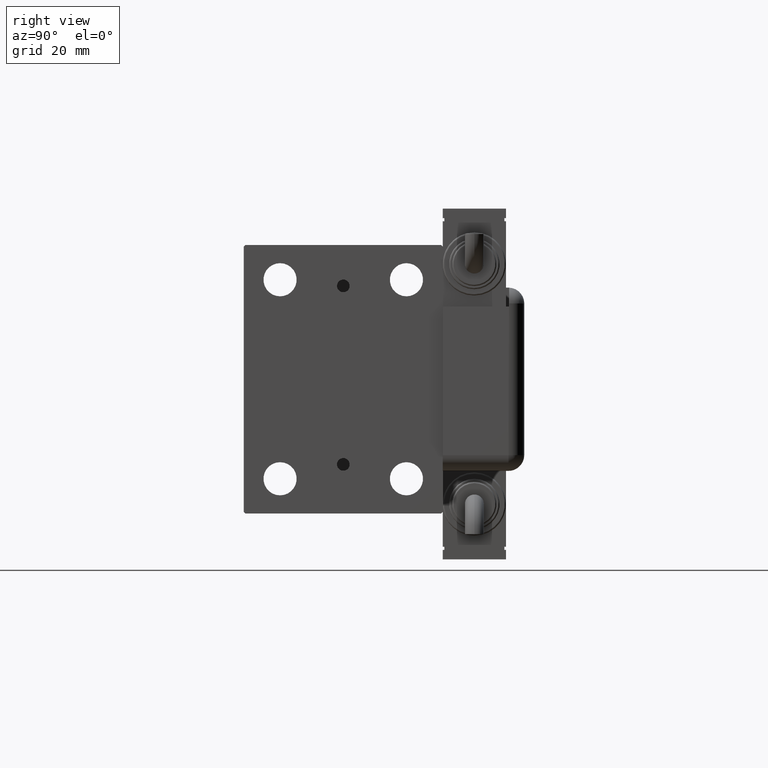
[diagram: clean part render]
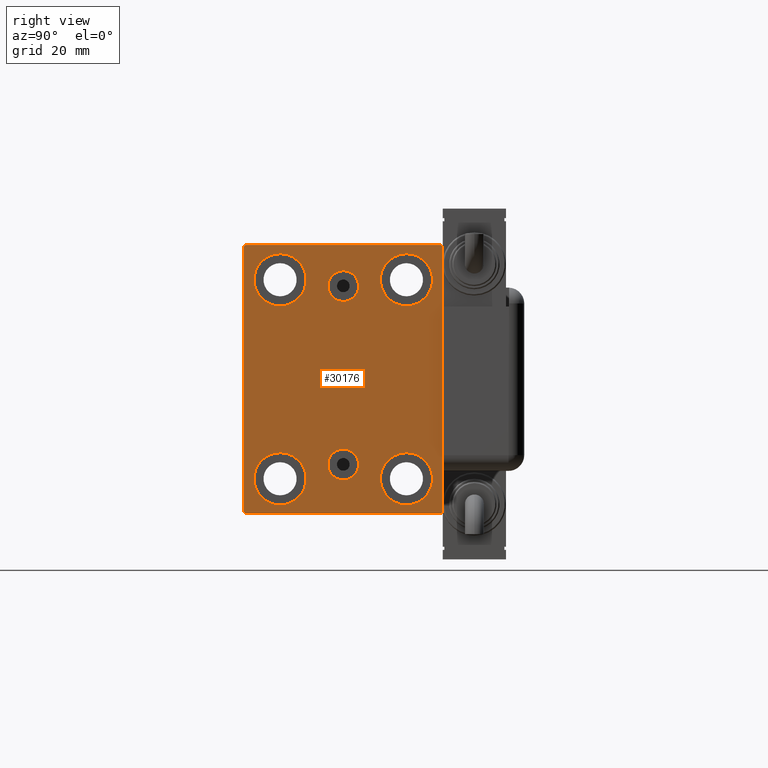
[diagram: same view with one face highlighted and labeled with its STEP entity id]
A machine part, right view. The second image highlights one B-rep face of the part: STEP entity #30176.
In plain terms, the highlighted planar face has unit normal (1, 0, 0).
Its self-contained STEP definition (entity closure, byte-faithful):
#319 = ORIENTED_EDGE ( 'NONE', *, *, #40085, .T. ) ;
#573 = CARTESIAN_POINT ( 'NONE',  ( 123.0000000000000000, -31.50000000000000000, 42.49999999999999289 ) ) ;
#655 = FACE_OUTER_BOUND ( 'NONE', #31200, .T. ) ;
#1117 = ORIENTED_EDGE ( 'NONE', *, *, #25153, .T. ) ;
#1187 = VERTEX_POINT ( 'NONE', #35546 ) ;
#1387 = VERTEX_POINT ( 'NONE', #48517 ) ;
#1448 = CIRCLE ( 'NONE', #40196, 4.859999999999995879 ) ;
#1711 = AXIS2_PLACEMENT_3D ( 'NONE', #7934, #17031, #43720 ) ;
#1806 = EDGE_LOOP ( 'NONE', ( #4683, #33412 ) ) ;
#1869 = DIRECTION ( 'NONE',  ( 0.000000000000000000, -1.000000000000000000, -2.202823461557850341E-16 ) ) ;
#1953 = CIRCLE ( 'NONE', #4851, 8.249999999999992895 ) ;
#2046 = VECTOR ( 'NONE', #41852, 1000.000000000000000 ) ;
#2326 = CIRCLE ( 'NONE', #24604, 4.859999999999999432 ) ;
#2895 = CARTESIAN_POINT ( 'NONE',  ( 123.0000000000000000, -20.00000000000000355, -23.24999999999999289 ) ) ;
#3154 = CARTESIAN_POINT ( 'NONE',  ( 123.0000000000000000, 3.306546357697852550E-15, -26.99999999999998934 ) ) ;
#3538 = DIRECTION ( 'NONE',  ( 0.000000000000000000, 0.000000000000000000, -1.000000000000000000 ) ) ;
#3613 = VECTOR ( 'NONE', #18113, 1000.000000000000114 ) ;
#3758 = EDGE_CURVE ( 'NONE', #26651, #47983, #48899, .T. ) ;
#3779 = EDGE_CURVE ( 'NONE', #54001, #7588, #1448, .T. ) ;
#3856 = AXIS2_PLACEMENT_3D ( 'NONE', #51069, #4967, #37413 ) ;
#4155 = VERTEX_POINT ( 'NONE', #35503 ) ;
#4438 = ORIENTED_EDGE ( 'NONE', *, *, #44698, .T. ) ;
#4590 = FACE_BOUND ( 'NONE', #36953, .T. ) ;
#4683 = ORIENTED_EDGE ( 'NONE', *, *, #51273, .F. ) ;
#4813 = DIRECTION ( 'NONE',  ( 0.000000000000000000, 0.000000000000000000, -1.000000000000000000 ) ) ;
#4851 = AXIS2_PLACEMENT_3D ( 'NONE', #20624, #57041, #52497 ) ;
#4967 = DIRECTION ( 'NONE',  ( 1.000000000000000000, 0.000000000000000000, 0.000000000000000000 ) ) ;
#4990 = CARTESIAN_POINT ( 'NONE',  ( 123.0000000000000000, 20.00000000000000355, 31.50000000000000000 ) ) ;
#5197 = CARTESIAN_POINT ( 'NONE',  ( 123.0000000000000000, 0.000000000000000000, 0.000000000000000000 ) ) ;
#5269 = CIRCLE ( 'NONE', #50809, 8.250000000000000000 ) ;
#5886 = AXIS2_PLACEMENT_3D ( 'NONE', #5197, #56462, #20026 ) ;
#5912 = ORIENTED_EDGE ( 'NONE', *, *, #43317, .F. ) ;
#6401 = CARTESIAN_POINT ( 'NONE',  ( 123.0000000000000000, -20.00000000000000355, -31.49999999999999289 ) ) ;
#6558 = VECTOR ( 'NONE', #14592, 1000.000000000000114 ) ;
#6769 = DIRECTION ( 'NONE',  ( -0.000000000000000000, 0.7071067811865376918, 0.7071067811865573427 ) ) ;
#7588 = VERTEX_POINT ( 'NONE', #14503 ) ;
#7708 = DIRECTION ( 'NONE',  ( 0.000000000000000000, 0.000000000000000000, 1.000000000000000000 ) ) ;
#7741 = ORIENTED_EDGE ( 'NONE', *, *, #27687, .T. ) ;
#7934 = CARTESIAN_POINT ( 'NONE',  ( 123.0000000000000000, 19.99999999999999645, -31.49999999999999289 ) ) ;
#8004 = CARTESIAN_POINT ( 'NONE',  ( 123.0000000000000000, 31.50000000000001421, -42.50000000000000711 ) ) ;
#8468 = CIRCLE ( 'NONE', #1711, 8.250000000000000000 ) ;
#9217 = CARTESIAN_POINT ( 'NONE',  ( 123.0000000000000000, -31.50000000000000000, -42.00000000000003553 ) ) ;
#10360 = FACE_BOUND ( 'NONE', #13549, .T. ) ;
#10794 = AXIS2_PLACEMENT_3D ( 'NONE', #20158, #15936, #15041 ) ;
#11382 = EDGE_CURVE ( 'NONE', #52920, #57499, #20282, .T. ) ;
#11829 = VERTEX_POINT ( 'NONE', #29246 ) ;
#11981 = EDGE_LOOP ( 'NONE', ( #47327, #56843 ) ) ;
#12191 = CARTESIAN_POINT ( 'NONE',  ( 123.0000000000000000, 31.50000000000000000, 42.50000000000000711 ) ) ;
#12286 = CARTESIAN_POINT ( 'NONE',  ( 123.0000000000000000, 20.00000000000000355, 31.50000000000000000 ) ) ;
#12296 = CARTESIAN_POINT ( 'NONE',  ( 123.0000000000000000, 19.99999999999999645, -39.74999999999999289 ) ) ;
#12384 = DIRECTION ( 'NONE',  ( 0.000000000000000000, 0.000000000000000000, 1.000000000000000000 ) ) ;
#13127 = CARTESIAN_POINT ( 'NONE',  ( 123.0000000000000000, 31.00000000000000000, 42.50000000000000711 ) ) ;
#13549 = EDGE_LOOP ( 'NONE', ( #319, #4438 ) ) ;
#13912 = CARTESIAN_POINT ( 'NONE',  ( 123.0000000000000000, 31.00000000000004263, -42.50000000000000711 ) ) ;
#14101 = DIRECTION ( 'NONE',  ( 0.000000000000000000, 0.000000000000000000, 1.000000000000000000 ) ) ;
#14503 = CARTESIAN_POINT ( 'NONE',  ( 123.0000000000000000, 3.306546357697852550E-15, -31.85999999999998522 ) ) ;
#14592 = DIRECTION ( 'NONE',  ( -0.000000000000000000, 0.7071067811865573427, -0.7071067811865376918 ) ) ;
#14702 = CARTESIAN_POINT ( 'NONE',  ( 123.0000000000000000, -20.00000000000000355, -39.74999999999999289 ) ) ;
#15041 = DIRECTION ( 'NONE',  ( 0.000000000000000000, 0.000000000000000000, 1.000000000000000000 ) ) ;
#15936 = DIRECTION ( 'NONE',  ( -1.000000000000000000, -0.000000000000000000, -0.000000000000000000 ) ) ;
#16015 = CARTESIAN_POINT ( 'NONE',  ( 123.0000000000000000, 36.74999999999958078, 36.75000000000059686 ) ) ;
#16231 = DIRECTION ( 'NONE',  ( -1.000000000000000000, -0.000000000000000000, -0.000000000000000000 ) ) ;
#16474 = AXIS2_PLACEMENT_3D ( 'NONE', #56014, #22420, #55709 ) ;
#16678 = ORIENTED_EDGE ( 'NONE', *, *, #56434, .T. ) ;
#17031 = DIRECTION ( 'NONE',  ( -1.000000000000000000, -0.000000000000000000, -0.000000000000000000 ) ) ;
#17510 = EDGE_LOOP ( 'NONE', ( #1117, #7741 ) ) ;
#17794 = ORIENTED_EDGE ( 'NONE', *, *, #28315, .T. ) ;
#18113 = DIRECTION ( 'NONE',  ( 0.000000000000000000, -0.7071067811865474617, -0.7071067811865474617 ) ) ;
#19700 = DIRECTION ( 'NONE',  ( 0.000000000000000000, 1.000000000000000000, 0.000000000000000000 ) ) ;
#19822 = DIRECTION ( 'NONE',  ( 1.000000000000000000, 0.000000000000000000, -0.000000000000000000 ) ) ;
#20026 = DIRECTION ( 'NONE',  ( 0.000000000000000000, 0.000000000000000000, -1.000000000000000000 ) ) ;
#20060 = EDGE_CURVE ( 'NONE', #11829, #33608, #47449, .T. ) ;
#20158 = CARTESIAN_POINT ( 'NONE',  ( 123.0000000000000000, -19.99999999999999645, 31.50000000000000000 ) ) ;
#20282 = LINE ( 'NONE', #24537, #56784 ) ;
#20624 = CARTESIAN_POINT ( 'NONE',  ( 123.0000000000000000, -19.99999999999999645, 31.50000000000000000 ) ) ;
#22420 = DIRECTION ( 'NONE',  ( -1.000000000000000000, -0.000000000000000000, -0.000000000000000000 ) ) ;
#23058 = EDGE_LOOP ( 'NONE', ( #49714, #34594 ) ) ;
#23586 = EDGE_CURVE ( 'NONE', #4155, #1387, #46396, .T. ) ;
#24537 = CARTESIAN_POINT ( 'NONE',  ( 123.0000000000000000, -31.50000000000000000, -42.50000000000000711 ) ) ;
#24583 = DIRECTION ( 'NONE',  ( -1.000000000000000000, -0.000000000000000000, -0.000000000000000000 ) ) ;
#24604 = AXIS2_PLACEMENT_3D ( 'NONE', #41948, #51657, #3538 ) ;
#25153 = EDGE_CURVE ( 'NONE', #47236, #1187, #1953, .T. ) ;
#25334 = VERTEX_POINT ( 'NONE', #28083 ) ;
#26185 = CARTESIAN_POINT ( 'NONE',  ( 123.0000000000000000, -31.50000000000000000, 41.99999999999999289 ) ) ;
#26651 = VERTEX_POINT ( 'NONE', #33418 ) ;
#27414 = DIRECTION ( 'NONE',  ( -1.000000000000000000, -0.000000000000000000, -0.000000000000000000 ) ) ;
#27687 = EDGE_CURVE ( 'NONE', #1187, #47236, #47571, .T. ) ;
#28083 = CARTESIAN_POINT ( 'NONE',  ( 123.0000000000000000, -2.976515330312223011E-15, 34.36000000000000654 ) ) ;
#28315 = EDGE_CURVE ( 'NONE', #1387, #30105, #47835, .T. ) ;
#28502 = CARTESIAN_POINT ( 'NONE',  ( 123.0000000000000000, -36.74999999999958078, -36.75000000000060396 ) ) ;
#28923 = VERTEX_POINT ( 'NONE', #9217 ) ;
#28928 = EDGE_CURVE ( 'NONE', #25334, #56907, #29980, .T. ) ;
#29246 = CARTESIAN_POINT ( 'NONE',  ( 123.0000000000000000, 19.99999999999999645, -23.24999999999999289 ) ) ;
#29801 = CARTESIAN_POINT ( 'NONE',  ( 123.0000000000000000, 3.901724702083465828E-15, -22.13999999999999346 ) ) ;
#29943 = VERTEX_POINT ( 'NONE', #51372 ) ;
#29980 = CIRCLE ( 'NONE', #3856, 4.859999999999999432 ) ;
#30105 = VERTEX_POINT ( 'NONE', #13127 ) ;
#30176 = ADVANCED_FACE ( 'NONE', ( #4590, #40392, #35858, #54373, #41893, #10360, #655 ), #57039, .T. ) ;
#30538 = ORIENTED_EDGE ( 'NONE', *, *, #23586, .T. ) ;
#31200 = EDGE_LOOP ( 'NONE', ( #31873, #45753, #56723, #16678, #38010, #50252, #30538, #17794 ) ) ;
#31873 = ORIENTED_EDGE ( 'NONE', *, *, #46609, .T. ) ;
#32387 = VECTOR ( 'NONE', #6769, 1000.000000000000114 ) ;
#32645 = CARTESIAN_POINT ( 'NONE',  ( 123.0000000000000000, -36.75000000000000000, 36.75000000000000000 ) ) ;
#32854 = CARTESIAN_POINT ( 'NONE',  ( 123.0000000000000000, -31.00000000000001421, -42.50000000000000711 ) ) ;
#33412 = ORIENTED_EDGE ( 'NONE', *, *, #3779, .F. ) ;
#33418 = CARTESIAN_POINT ( 'NONE',  ( 123.0000000000000000, 20.00000000000000355, 39.74999999999999289 ) ) ;
#33491 = CIRCLE ( 'NONE', #58700, 4.859999999999995879 ) ;
#33608 = VERTEX_POINT ( 'NONE', #12296 ) ;
#34444 = VECTOR ( 'NONE', #1869, 1000.000000000000000 ) ;
#34594 = ORIENTED_EDGE ( 'NONE', *, *, #20060, .T. ) ;
#35304 = EDGE_CURVE ( 'NONE', #54947, #28923, #46062, .T. ) ;
#35361 = AXIS2_PLACEMENT_3D ( 'NONE', #4990, #27414, #14101 ) ;
#35503 = CARTESIAN_POINT ( 'NONE',  ( 123.0000000000000000, 31.50000000000001421, -42.00000000000002132 ) ) ;
#35546 = CARTESIAN_POINT ( 'NONE',  ( 123.0000000000000000, -19.99999999999999645, 39.74999999999999289 ) ) ;
#35802 = VECTOR ( 'NONE', #52104, 1000.000000000000000 ) ;
#35858 = FACE_BOUND ( 'NONE', #23058, .T. ) ;
#36495 = DIRECTION ( 'NONE',  ( 0.000000000000000000, 0.000000000000000000, 1.000000000000000000 ) ) ;
#36953 = EDGE_LOOP ( 'NONE', ( #5912, #42119 ) ) ;
#37413 = DIRECTION ( 'NONE',  ( 0.000000000000000000, 0.000000000000000000, -1.000000000000000000 ) ) ;
#37770 = CARTESIAN_POINT ( 'NONE',  ( 123.0000000000000000, 20.00000000000000355, 23.25000000000000355 ) ) ;
#38010 = ORIENTED_EDGE ( 'NONE', *, *, #11382, .T. ) ;
#38844 = DIRECTION ( 'NONE',  ( 0.000000000000000000, 0.000000000000000000, 1.000000000000000000 ) ) ;
#39812 = CARTESIAN_POINT ( 'NONE',  ( 123.0000000000000000, 36.75000000000045475, -36.74999999999943867 ) ) ;
#40085 = EDGE_CURVE ( 'NONE', #40463, #44082, #48692, .T. ) ;
#40137 = DIRECTION ( 'NONE',  ( 1.000000000000000000, 0.000000000000000000, -0.000000000000000000 ) ) ;
#40196 = AXIS2_PLACEMENT_3D ( 'NONE', #56549, #19822, #47421 ) ;
#40392 = FACE_BOUND ( 'NONE', #1806, .T. ) ;
#40463 = VERTEX_POINT ( 'NONE', #14702 ) ;
#40767 = VECTOR ( 'NONE', #4813, 1000.000000000000000 ) ;
#41232 = AXIS2_PLACEMENT_3D ( 'NONE', #12286, #16231, #7708 ) ;
#41852 = DIRECTION ( 'NONE',  ( 0.000000000000000000, -1.632680918566406300E-16, 1.000000000000000000 ) ) ;
#41893 = FACE_BOUND ( 'NONE', #11981, .T. ) ;
#41948 = CARTESIAN_POINT ( 'NONE',  ( 123.0000000000000000, -3.571693674697836683E-15, 29.50000000000001066 ) ) ;
#42119 = ORIENTED_EDGE ( 'NONE', *, *, #28928, .F. ) ;
#42889 = AXIS2_PLACEMENT_3D ( 'NONE', #59367, #54815, #12384 ) ;
#43317 = EDGE_CURVE ( 'NONE', #56907, #25334, #2326, .T. ) ;
#43718 = LINE ( 'NONE', #12191, #34444 ) ;
#43720 = DIRECTION ( 'NONE',  ( 0.000000000000000000, 0.000000000000000000, 1.000000000000000000 ) ) ;
#44082 = VERTEX_POINT ( 'NONE', #2895 ) ;
#44289 = EDGE_CURVE ( 'NONE', #57499, #4155, #44368, .T. ) ;
#44368 = LINE ( 'NONE', #39812, #32387 ) ;
#44698 = EDGE_CURVE ( 'NONE', #44082, #40463, #5269, .T. ) ;
#45753 = ORIENTED_EDGE ( 'NONE', *, *, #54571, .T. ) ;
#46062 = LINE ( 'NONE', #573, #40767 ) ;
#46396 = LINE ( 'NONE', #8004, #2046 ) ;
#46404 = CARTESIAN_POINT ( 'NONE',  ( 123.0000000000000000, -19.99999999999999645, 23.25000000000000355 ) ) ;
#46609 = EDGE_CURVE ( 'NONE', #30105, #29943, #43718, .T. ) ;
#47102 = CARTESIAN_POINT ( 'NONE',  ( 123.0000000000000000, -3.571693674697836683E-15, 24.64000000000001123 ) ) ;
#47236 = VERTEX_POINT ( 'NONE', #46404 ) ;
#47327 = ORIENTED_EDGE ( 'NONE', *, *, #48103, .T. ) ;
#47421 = DIRECTION ( 'NONE',  ( 0.000000000000000000, 0.000000000000000000, 1.000000000000000000 ) ) ;
#47449 = CIRCLE ( 'NONE', #16474, 8.250000000000000000 ) ;
#47571 = CIRCLE ( 'NONE', #10794, 8.249999999999992895 ) ;
#47835 = LINE ( 'NONE', #16015, #35802 ) ;
#47983 = VERTEX_POINT ( 'NONE', #37770 ) ;
#48103 = EDGE_CURVE ( 'NONE', #47983, #26651, #54808, .T. ) ;
#48517 = CARTESIAN_POINT ( 'NONE',  ( 123.0000000000000000, 31.50000000000000000, 42.00000000000002132 ) ) ;
#48692 = CIRCLE ( 'NONE', #42889, 8.250000000000000000 ) ;
#48899 = CIRCLE ( 'NONE', #35361, 8.249999999999992895 ) ;
#49714 = ORIENTED_EDGE ( 'NONE', *, *, #55326, .T. ) ;
#50252 = ORIENTED_EDGE ( 'NONE', *, *, #44289, .T. ) ;
#50809 = AXIS2_PLACEMENT_3D ( 'NONE', #6401, #24583, #38844 ) ;
#51069 = CARTESIAN_POINT ( 'NONE',  ( 123.0000000000000000, -3.571693674697836683E-15, 29.50000000000001066 ) ) ;
#51273 = EDGE_CURVE ( 'NONE', #7588, #54001, #33491, .T. ) ;
#51372 = CARTESIAN_POINT ( 'NONE',  ( 123.0000000000000000, -31.00000000000000000, 42.49999999999999289 ) ) ;
#51468 = LINE ( 'NONE', #32645, #3613 ) ;
#51657 = DIRECTION ( 'NONE',  ( 1.000000000000000000, 0.000000000000000000, 0.000000000000000000 ) ) ;
#52104 = DIRECTION ( 'NONE',  ( -0.000000000000000000, -0.7071067811865573427, 0.7071067811865378028 ) ) ;
#52497 = DIRECTION ( 'NONE',  ( 0.000000000000000000, 0.000000000000000000, 1.000000000000000000 ) ) ;
#52768 = LINE ( 'NONE', #28502, #6558 ) ;
#52920 = VERTEX_POINT ( 'NONE', #32854 ) ;
#54001 = VERTEX_POINT ( 'NONE', #29801 ) ;
#54373 = FACE_BOUND ( 'NONE', #17510, .T. ) ;
#54571 = EDGE_CURVE ( 'NONE', #29943, #54947, #51468, .T. ) ;
#54808 = CIRCLE ( 'NONE', #41232, 8.249999999999992895 ) ;
#54815 = DIRECTION ( 'NONE',  ( -1.000000000000000000, -0.000000000000000000, -0.000000000000000000 ) ) ;
#54947 = VERTEX_POINT ( 'NONE', #26185 ) ;
#55326 = EDGE_CURVE ( 'NONE', #33608, #11829, #8468, .T. ) ;
#55709 = DIRECTION ( 'NONE',  ( 0.000000000000000000, 0.000000000000000000, 1.000000000000000000 ) ) ;
#56014 = CARTESIAN_POINT ( 'NONE',  ( 123.0000000000000000, 19.99999999999999645, -31.49999999999999289 ) ) ;
#56434 = EDGE_CURVE ( 'NONE', #28923, #52920, #52768, .T. ) ;
#56462 = DIRECTION ( 'NONE',  ( 1.000000000000000000, 0.000000000000000000, 0.000000000000000000 ) ) ;
#56549 = CARTESIAN_POINT ( 'NONE',  ( 123.0000000000000000, 3.306546357697852550E-15, -26.99999999999998934 ) ) ;
#56723 = ORIENTED_EDGE ( 'NONE', *, *, #35304, .T. ) ;
#56784 = VECTOR ( 'NONE', #19700, 1000.000000000000000 ) ;
#56843 = ORIENTED_EDGE ( 'NONE', *, *, #3758, .T. ) ;
#56907 = VERTEX_POINT ( 'NONE', #47102 ) ;
#57039 = PLANE ( 'NONE',  #5886 ) ;
#57041 = DIRECTION ( 'NONE',  ( -1.000000000000000000, -0.000000000000000000, -0.000000000000000000 ) ) ;
#57499 = VERTEX_POINT ( 'NONE', #13912 ) ;
#58700 = AXIS2_PLACEMENT_3D ( 'NONE', #3154, #40137, #36495 ) ;
#59367 = CARTESIAN_POINT ( 'NONE',  ( 123.0000000000000000, -20.00000000000000355, -31.49999999999999289 ) ) ;